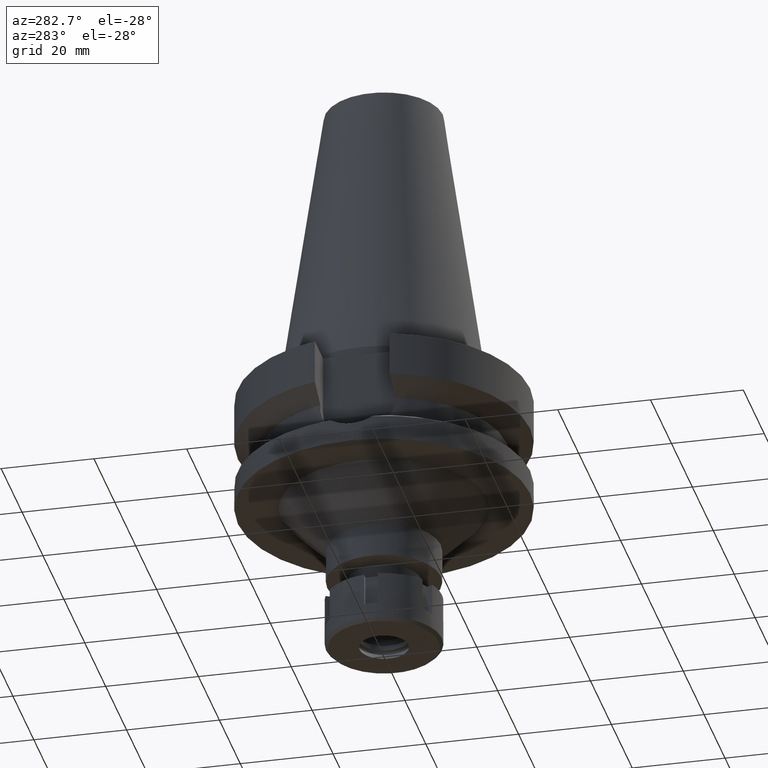
[diagram: clean part render]
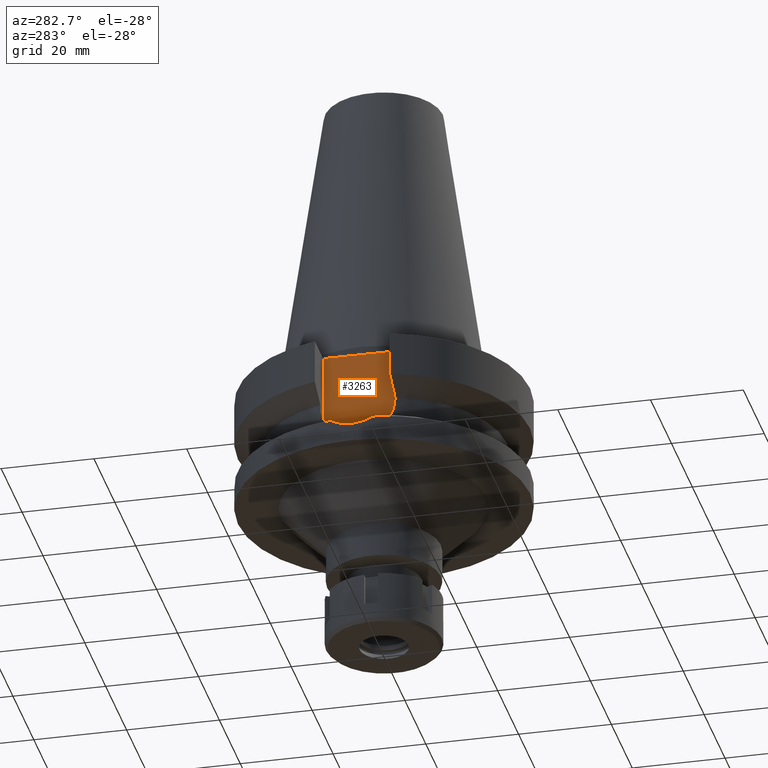
[diagram: same view with one face highlighted and labeled with its STEP entity id]
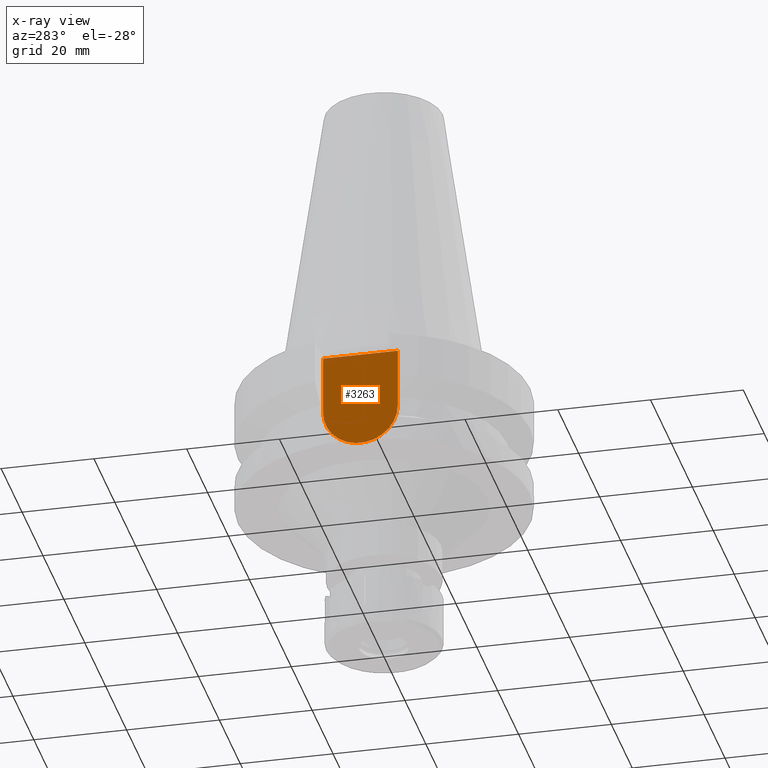
[diagram: x-ray of the same camera — body ghosted, the highlighted face saturated]
A machine part, auxiliary view. The second image highlights one B-rep face of the part: STEP entity #3263.
The next image is the same camera in x-ray: the body ghosted, the highlighted face saturated — about 0% of this face is hidden behind the body in this view.
In plain terms, the highlighted planar face has unit normal (-1, 0, 0).
Its self-contained STEP definition (entity closure, byte-faithful):
#40 = EDGE_CURVE ( 'NONE', #3250, #3315, #3433, .T. ) ;
#69 = AXIS2_PLACEMENT_3D ( 'NONE', #3566, #2411, #3302 ) ;
#125 = ORIENTED_EDGE ( 'NONE', *, *, #1711, .F. ) ;
#131 = VECTOR ( 'NONE', #3135, 1000.000000000000000 ) ;
#384 = CARTESIAN_POINT ( 'NONE',  ( -22.50000000000000000, -8.050000000000000711, -2.000000000000000000 ) ) ;
#619 = VERTEX_POINT ( 'NONE', #1066 ) ;
#644 = DIRECTION ( 'NONE',  ( 0.0000000000000000000, 0.0000000000000000000, -1.000000000000000000 ) ) ;
#691 = CIRCLE ( 'NONE', #69, 8.050000000000000711 ) ;
#860 = DIRECTION ( 'NONE',  ( 0.0000000000000000000, 0.0000000000000000000, 1.000000000000000000 ) ) ;
#869 = EDGE_CURVE ( 'NONE', #619, #3315, #1205, .T. ) ;
#877 = CARTESIAN_POINT ( 'NONE',  ( -22.50000000000000000, 8.050000000000000711, -14.94999999999999929 ) ) ;
#1013 = CARTESIAN_POINT ( 'NONE',  ( -22.50000000000000000, -8.050000000000000711, -14.94999999999999929 ) ) ;
#1066 = CARTESIAN_POINT ( 'NONE',  ( -22.50000000000000000, -8.050000000000000711, -2.000000000000000000 ) ) ;
#1103 = EDGE_LOOP ( 'NONE', ( #2027, #2152, #125, #3459 ) ) ;
#1127 = CARTESIAN_POINT ( 'NONE',  ( -22.50000000000000000, 2.173748068486999793E-14, 0.0000000000000000000 ) ) ;
#1205 = LINE ( 'NONE', #2390, #131 ) ;
#1711 = EDGE_CURVE ( 'NONE', #619, #2333, #2014, .T. ) ;
#1984 = DIRECTION ( 'NONE',  ( -1.000000000000000000, 0.0000000000000000000, 0.0000000000000000000 ) ) ;
#2005 = FACE_OUTER_BOUND ( 'NONE', #1103, .T. ) ;
#2014 = LINE ( 'NONE', #384, #3079 ) ;
#2027 = ORIENTED_EDGE ( 'NONE', *, *, #40, .F. ) ;
#2057 = DIRECTION ( 'NONE',  ( 0.0000000000000000000, 0.0000000000000000000, 1.000000000000000000 ) ) ;
#2152 = ORIENTED_EDGE ( 'NONE', *, *, #2995, .F. ) ;
#2333 = VERTEX_POINT ( 'NONE', #1013 ) ;
#2354 = CARTESIAN_POINT ( 'NONE',  ( -22.50000000000000000, 8.050000000000000711, -2.000000000000000000 ) ) ;
#2390 = CARTESIAN_POINT ( 'NONE',  ( -22.50000000000000000, -8.050000000000000711, -2.000000000000000000 ) ) ;
#2411 = DIRECTION ( 'NONE',  ( 1.000000000000000000, 0.0000000000000000000, 0.0000000000000000000 ) ) ;
#2528 = PLANE ( 'NONE',  #2835 ) ;
#2835 = AXIS2_PLACEMENT_3D ( 'NONE', #1127, #1984, #860 ) ;
#2995 = EDGE_CURVE ( 'NONE', #2333, #3250, #691, .T. ) ;
#3079 = VECTOR ( 'NONE', #644, 1000.000000000000000 ) ;
#3090 = VECTOR ( 'NONE', #2057, 1000.000000000000000 ) ;
#3135 = DIRECTION ( 'NONE',  ( 0.0000000000000000000, 1.000000000000000000, 0.0000000000000000000 ) ) ;
#3250 = VERTEX_POINT ( 'NONE', #877 ) ;
#3263 = ADVANCED_FACE ( 'NONE', ( #2005 ), #2528, .T. ) ;
#3302 = DIRECTION ( 'NONE',  ( 0.0000000000000000000, 0.0000000000000000000, -1.000000000000000000 ) ) ;
#3315 = VERTEX_POINT ( 'NONE', #2354 ) ;
#3433 = LINE ( 'NONE', #3469, #3090 ) ;
#3459 = ORIENTED_EDGE ( 'NONE', *, *, #869, .T. ) ;
#3469 = CARTESIAN_POINT ( 'NONE',  ( -22.50000000000000000, 8.050000000000000711, -14.94999999999999929 ) ) ;
#3566 = CARTESIAN_POINT ( 'NONE',  ( -22.50000000000000000, 1.807578675540999863E-14, -14.94999999999999929 ) ) ;